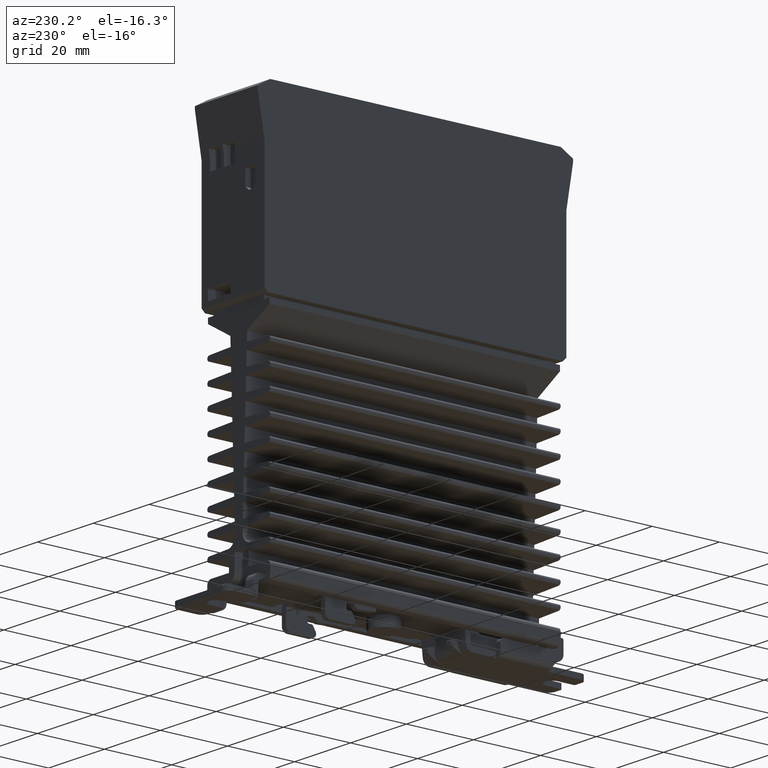
[diagram: clean part render]
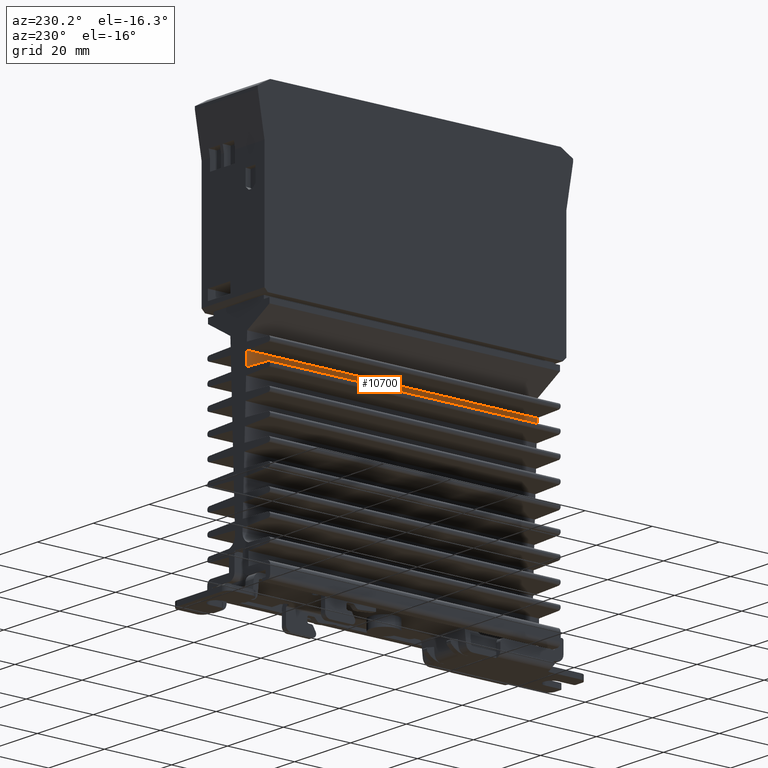
[diagram: same view with one face highlighted and labeled with its STEP entity id]
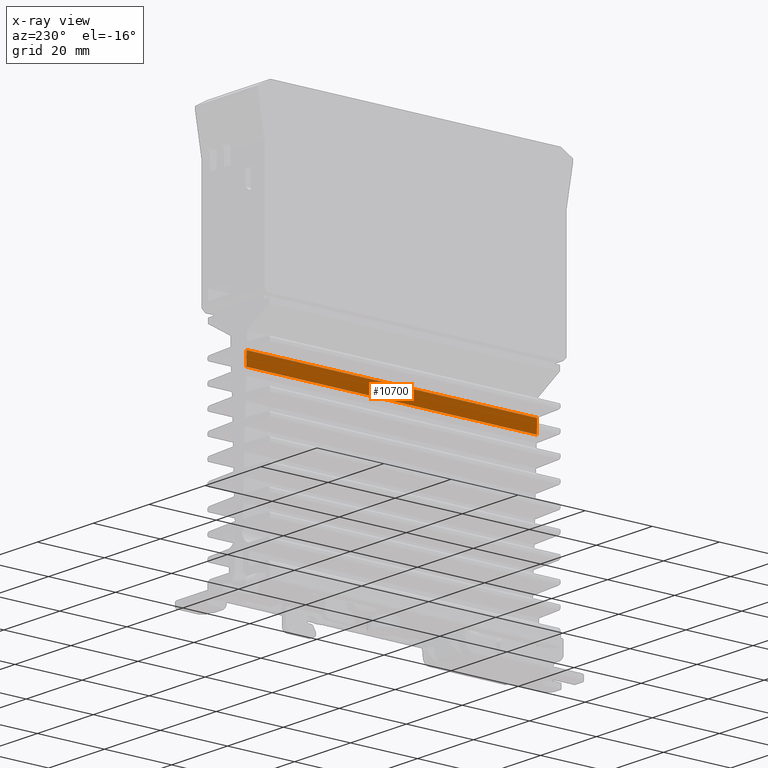
[diagram: x-ray of the same camera — body ghosted, the highlighted face saturated]
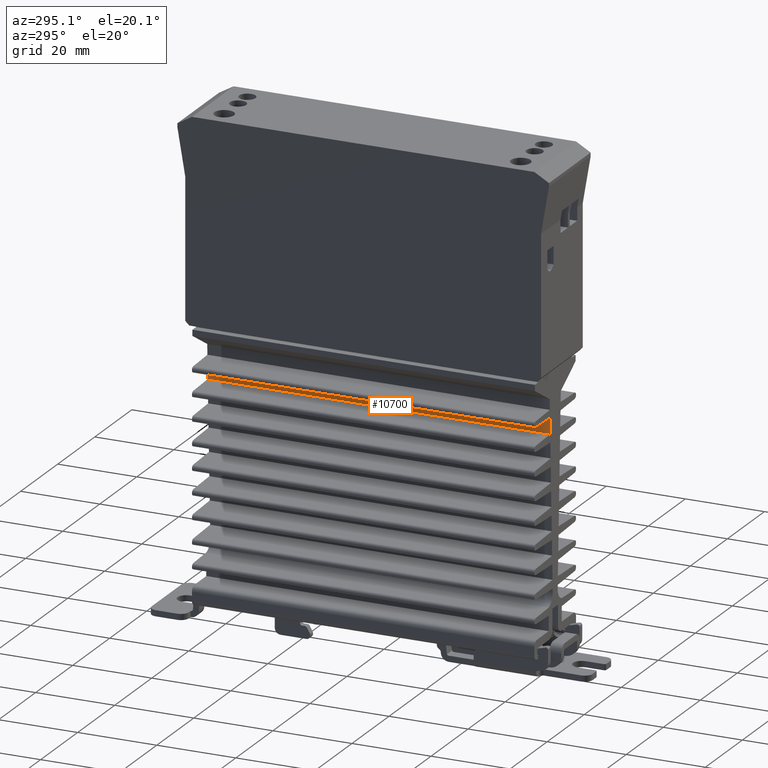
[diagram: same view with one face highlighted and labeled with its STEP entity id]
A machine part, auxiliary view. The second image highlights one B-rep face of the part: STEP entity #10700.
The next image is the same camera in x-ray: the body ghosted, the highlighted face saturated — about 0% of this face is hidden behind the body in this view.
A second angle (auxiliary view) of the same face is appended — the face is thin or edge-on in the first view.
In plain terms, the highlighted planar face has unit normal (0.9994, 0, 0.0349).
Its self-contained STEP definition (entity closure, byte-faithful):
#932 = ORIENTED_EDGE ( 'NONE', *, *, #10669, .T. ) ;
#1188 = VECTOR ( 'NONE', #15205, 39.37007874015748143 ) ;
#1378 = LINE ( 'NONE', #15279, #1188 ) ;
#1516 = PLANE ( 'NONE',  #10731 ) ;
#1579 = DIRECTION ( 'NONE',  ( 0.03489949670250078878, 0.000000000000000000, -0.9993908270190957621 ) ) ;
#1831 = CARTESIAN_POINT ( 'NONE',  ( -0.1116494932731994100, -1.704724409448818978, -0.4652792727534842965 ) ) ;
#2922 = CARTESIAN_POINT ( 'NONE',  ( -0.1181102362204724532, 1.704724409448818978, -0.2802678013195669116 ) ) ;
#3189 = VERTEX_POINT ( 'NONE', #13376 ) ;
#4066 = DIRECTION ( 'NONE',  ( 0.03489949670250198921, 0.000000000000000000, -0.9993908270190957621 ) ) ;
#5055 = EDGE_CURVE ( 'NONE', #12045, #11419, #10834, .T. ) ;
#5529 = LINE ( 'NONE', #2922, #10472 ) ;
#6747 = LINE ( 'NONE', #1831, #14108 ) ;
#6830 = CARTESIAN_POINT ( 'NONE',  ( -0.1062065481243145704, 1.704724409448818978, -0.6211448286419626319 ) ) ;
#8127 = CARTESIAN_POINT ( 'NONE',  ( -0.1116494932731992157, 0.000000000000000000, -0.4652792727534834638 ) ) ;
#8625 = EDGE_LOOP ( 'NONE', ( #932, #14115, #9724, #15741 ) ) ;
#8984 = DIRECTION ( 'NONE',  ( 0.03489949670250198227, 0.000000000000000000, -0.9993908270190955401 ) ) ;
#9067 = DIRECTION ( 'NONE',  ( 0.9993908270190957621, 0.000000000000000000, 0.03489949670250198921 ) ) ;
#9188 = EDGE_CURVE ( 'NONE', #11419, #3189, #6747, .T. ) ;
#9724 = ORIENTED_EDGE ( 'NONE', *, *, #9188, .F. ) ;
#10472 = VECTOR ( 'NONE', #8984, 39.37007874015748854 ) ;
#10669 = EDGE_CURVE ( 'NONE', #12045, #14233, #5529, .T. ) ;
#10700 = ADVANCED_FACE ( 'NONE', ( #15497 ), #1516, .F. ) ;
#10731 = AXIS2_PLACEMENT_3D ( 'NONE', #14175, #9067, #4066 ) ;
#10834 = LINE ( 'NONE', #8127, #14493 ) ;
#11419 = VERTEX_POINT ( 'NONE', #12250 ) ;
#12045 = VERTEX_POINT ( 'NONE', #15822 ) ;
#12250 = CARTESIAN_POINT ( 'NONE',  ( -0.1116494932731992157, -1.704724409448818978, -0.4652792727534842965 ) ) ;
#13376 = CARTESIAN_POINT ( 'NONE',  ( -0.1062065481243145704, -1.704724409448818978, -0.6211448286419626319 ) ) ;
#14108 = VECTOR ( 'NONE', #1579, 39.37007874015748143 ) ;
#14115 = ORIENTED_EDGE ( 'NONE', *, *, #14326, .T. ) ;
#14175 = CARTESIAN_POINT ( 'NONE',  ( -0.1181102362204724532, 0.000000000000000000, -0.2802678013195669116 ) ) ;
#14233 = VERTEX_POINT ( 'NONE', #6830 ) ;
#14326 = EDGE_CURVE ( 'NONE', #14233, #3189, #1378, .T. ) ;
#14493 = VECTOR ( 'NONE', #15705, 39.37007874015748143 ) ;
#15205 = DIRECTION ( 'NONE',  ( -0.000000000000000000, -1.000000000000000000, -0.000000000000000000 ) ) ;
#15279 = CARTESIAN_POINT ( 'NONE',  ( -0.1062065481243145704, -1.704724409448818978, -0.6211448286419626319 ) ) ;
#15497 = FACE_OUTER_BOUND ( 'NONE', #8625, .T. ) ;
#15705 = DIRECTION ( 'NONE',  ( -0.000000000000000000, -1.000000000000000000, -0.000000000000000000 ) ) ;
#15741 = ORIENTED_EDGE ( 'NONE', *, *, #5055, .F. ) ;
#15822 = CARTESIAN_POINT ( 'NONE',  ( -0.1116494932731992157, 1.704724409448818978, -0.4652792727534834638 ) ) ;